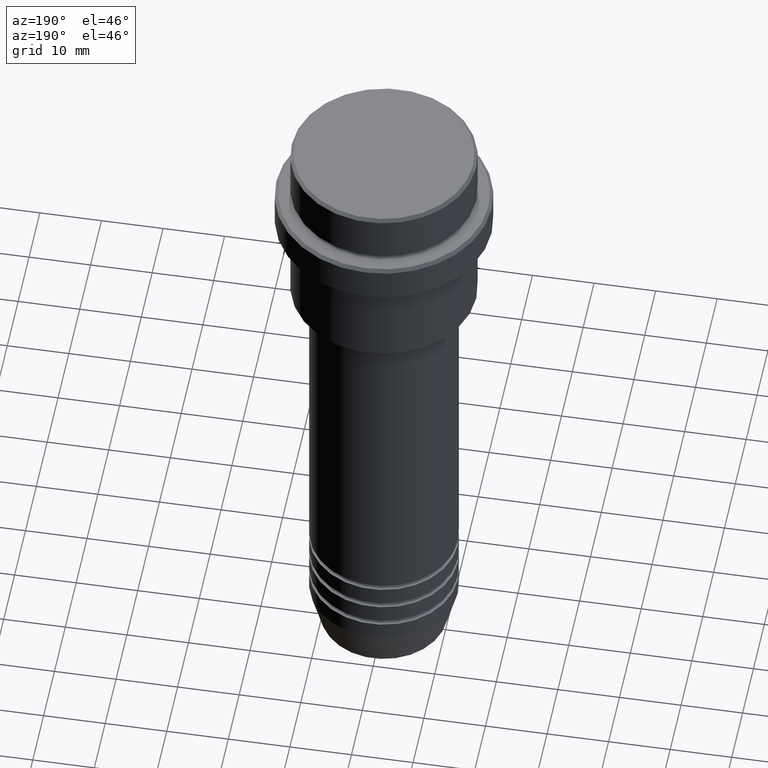
[diagram: clean part render]
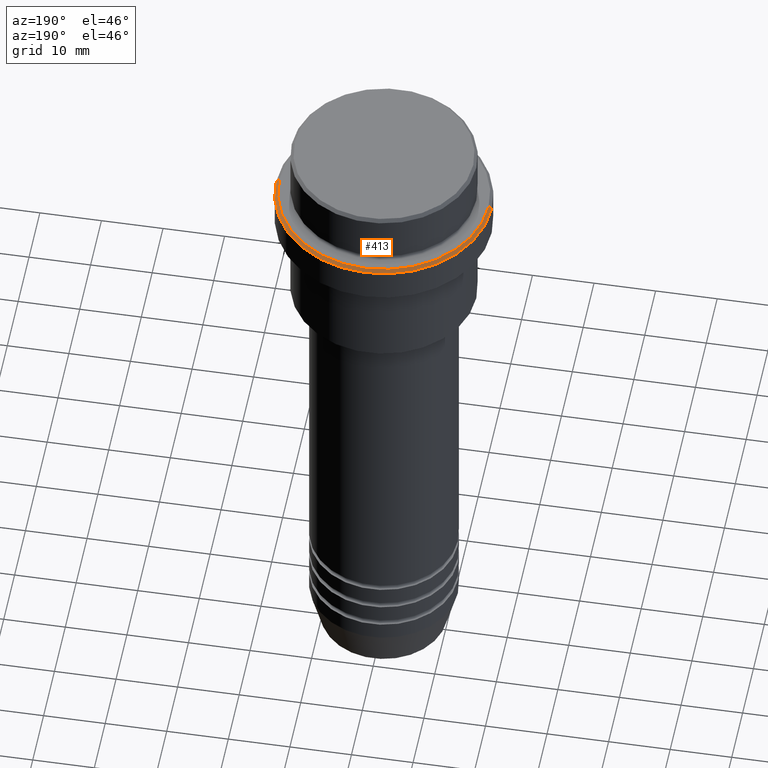
[diagram: same view with one face highlighted and labeled with its STEP entity id]
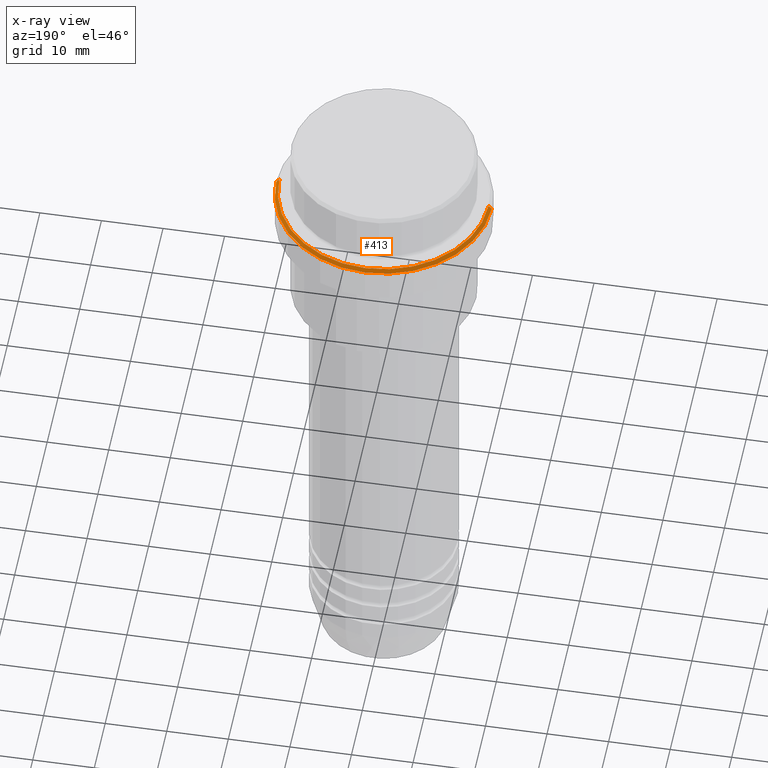
[diagram: x-ray of the same camera — body ghosted, the highlighted face saturated]
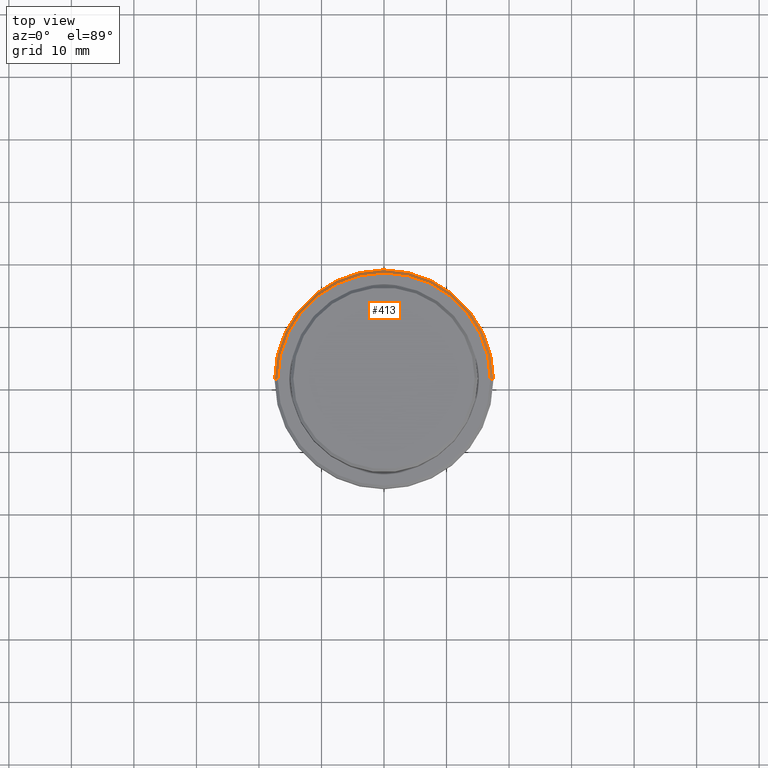
[diagram: same view with one face highlighted and labeled with its STEP entity id]
A machine part, auxiliary view. The second image highlights one B-rep face of the part: STEP entity #413.
The next image is the same camera in x-ray: the body ghosted, the highlighted face saturated — about 0% of this face is hidden behind the body in this view.
A second angle (top view) of the same face is appended — the face is thin or edge-on in the first view.
In plain terms, the highlighted conical surface has half-angle 45 deg.
Its self-contained STEP definition (entity closure, byte-faithful):
#9 = EDGE_CURVE ( 'NONE', #1103, #1276, #194, .T. ) ;
#68 = CARTESIAN_POINT ( 'NONE',  ( 0.000000000000000000, 0.000000000000000000, -9.499999999999985789 ) ) ;
#159 = CARTESIAN_POINT ( 'NONE',  ( 0.000000000000000000, 0.000000000000000000, -9.000000000000000000 ) ) ;
#194 = CIRCLE ( 'NONE', #1127, 17.50000000000000000 ) ;
#228 = DIRECTION ( 'NONE',  ( -0.7071067811865474617, 0.000000000000000000, -0.7071067811865474617 ) ) ;
#304 = DIRECTION ( 'NONE',  ( 1.000000000000000000, 0.000000000000000000, 0.000000000000000000 ) ) ;
#394 = ORIENTED_EDGE ( 'NONE', *, *, #543, .F. ) ;
#401 = AXIS2_PLACEMENT_3D ( 'NONE', #159, #813, #611 ) ;
#413 = ADVANCED_FACE ( 'NONE', ( #872 ), #1013, .T. ) ;
#450 = CARTESIAN_POINT ( 'NONE',  ( -17.00000000000001421, 0.000000000000000000, -9.000000000000000000 ) ) ;
#487 = EDGE_LOOP ( 'NONE', ( #563, #646, #1156, #394 ) ) ;
#514 = CIRCLE ( 'NONE', #401, 17.00000000000001421 ) ;
#543 = EDGE_CURVE ( 'NONE', #893, #1103, #680, .T. ) ;
#558 = VERTEX_POINT ( 'NONE', #1336 ) ;
#563 = ORIENTED_EDGE ( 'NONE', *, *, #675, .F. ) ;
#581 = VECTOR ( 'NONE', #228, 1000.000000000000114 ) ;
#611 = DIRECTION ( 'NONE',  ( 1.000000000000000000, 0.000000000000000000, 0.000000000000000000 ) ) ;
#615 = DIRECTION ( 'NONE',  ( 0.7071067811865474617, 8.659560562354932858E-17, -0.7071067811865474617 ) ) ;
#638 = CARTESIAN_POINT ( 'NONE',  ( 17.50000000000000000, 0.000000000000000000, -9.499999999999985789 ) ) ;
#646 = ORIENTED_EDGE ( 'NONE', *, *, #845, .T. ) ;
#675 = EDGE_CURVE ( 'NONE', #558, #893, #514, .T. ) ;
#680 = LINE ( 'NONE', #894, #581 ) ;
#813 = DIRECTION ( 'NONE',  ( -0.000000000000000000, -0.000000000000000000, 1.000000000000000000 ) ) ;
#845 = EDGE_CURVE ( 'NONE', #558, #1276, #929, .T. ) ;
#864 = DIRECTION ( 'NONE',  ( -1.000000000000000000, 0.000000000000000000, 0.000000000000000000 ) ) ;
#872 = FACE_OUTER_BOUND ( 'NONE', #487, .T. ) ;
#893 = VERTEX_POINT ( 'NONE', #450 ) ;
#894 = CARTESIAN_POINT ( 'NONE',  ( -17.00000000000001421, 0.000000000000000000, -9.000000000000000000 ) ) ;
#912 = AXIS2_PLACEMENT_3D ( 'NONE', #1309, #1288, #864 ) ;
#929 = LINE ( 'NONE', #1134, #1222 ) ;
#942 = DIRECTION ( 'NONE',  ( 0.000000000000000000, 0.000000000000000000, -1.000000000000000000 ) ) ;
#1013 = CONICAL_SURFACE ( 'NONE', #912, 17.00000000000001421, 0.7853981633974482790 ) ;
#1103 = VERTEX_POINT ( 'NONE', #1325 ) ;
#1127 = AXIS2_PLACEMENT_3D ( 'NONE', #68, #942, #304 ) ;
#1134 = CARTESIAN_POINT ( 'NONE',  ( 17.00000000000001421, 2.081899558550502252E-15, -9.000000000000000000 ) ) ;
#1156 = ORIENTED_EDGE ( 'NONE', *, *, #9, .F. ) ;
#1222 = VECTOR ( 'NONE', #615, 1000.000000000000114 ) ;
#1276 = VERTEX_POINT ( 'NONE', #638 ) ;
#1288 = DIRECTION ( 'NONE',  ( 0.000000000000000000, 0.000000000000000000, -1.000000000000000000 ) ) ;
#1309 = CARTESIAN_POINT ( 'NONE',  ( 0.000000000000000000, 0.000000000000000000, -9.000000000000000000 ) ) ;
#1325 = CARTESIAN_POINT ( 'NONE',  ( -17.50000000000000000, 2.143131898507868248E-15, -9.499999999999985789 ) ) ;
#1336 = CARTESIAN_POINT ( 'NONE',  ( 17.00000000000001421, 2.112515728529185250E-15, -9.000000000000000000 ) ) ;